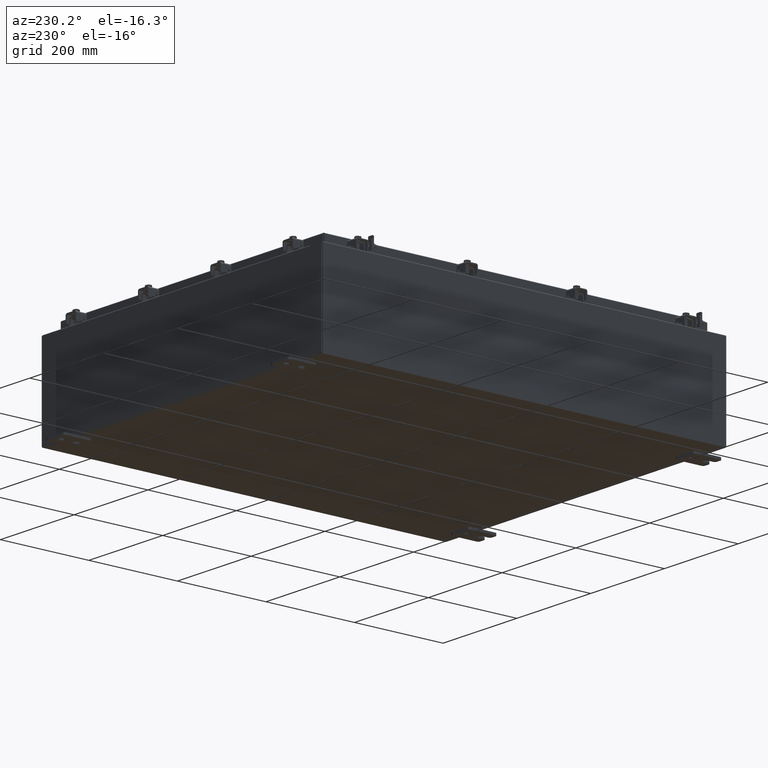
[diagram: clean part render]
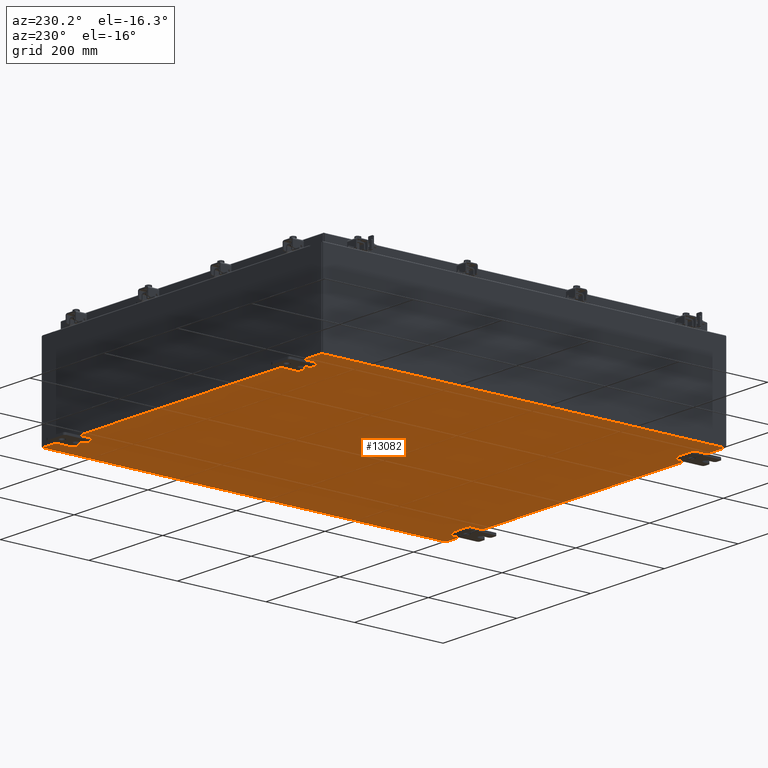
[diagram: same view with one face highlighted and labeled with its STEP entity id]
A machine part, auxiliary view. The second image highlights one B-rep face of the part: STEP entity #13082.
In plain terms, the highlighted planar face has unit normal (0, 0, -1).
Its self-contained STEP definition (entity closure, byte-faithful):
#157 = DIRECTION ( 'NONE',  ( 1.000000000000000000, 0.0000000000000000000, 0.0000000000000000000 ) ) ;
#253 = VECTOR ( 'NONE', #22814, 39.37007874015748100 ) ;
#2124 = AXIS2_PLACEMENT_3D ( 'NONE', #11583, #13489, #2151 ) ;
#2151 = DIRECTION ( 'NONE',  ( -1.000000000000000000, 0.0000000000000000000, -0.0000000000000000000 ) ) ;
#2978 = EDGE_CURVE ( 'NONE', #21582, #10442, #7890, .T. ) ;
#3082 = EDGE_CURVE ( 'NONE', #20355, #10442, #13789, .T. ) ;
#4549 = CARTESIAN_POINT ( 'NONE',  ( 14.91229999999999800, 17.92530000000000000, -0.07470000000000251400 ) ) ;
#4812 = EDGE_CURVE ( 'NONE', #21582, #7539, #11938, .T. ) ;
#5281 = LINE ( 'NONE', #17211, #253 ) ;
#5986 = ORIENTED_EDGE ( 'NONE', *, *, #3082, .T. ) ;
#6909 = VECTOR ( 'NONE', #9643, 39.37007874015748100 ) ;
#7539 = VERTEX_POINT ( 'NONE', #14081 ) ;
#7890 = LINE ( 'NONE', #13219, #14999 ) ;
#8891 = ORIENTED_EDGE ( 'NONE', *, *, #13056, .F. ) ;
#9478 = CARTESIAN_POINT ( 'NONE',  ( 14.91229999999999800, 17.92530000000000000, -0.07470000000000251400 ) ) ;
#9643 = DIRECTION ( 'NONE',  ( -0.0000000000000000000, 1.000000000000000000, -0.0000000000000000000 ) ) ;
#10233 = DIRECTION ( 'NONE',  ( -0.0000000000000000000, -1.000000000000000000, 8.208677865577646300E-017 ) ) ;
#10442 = VERTEX_POINT ( 'NONE', #18337 ) ;
#11583 = CARTESIAN_POINT ( 'NONE',  ( 0.0000000000000000000, 0.0000000000000000000, -0.07469999999999998900 ) ) ;
#11938 = LINE ( 'NONE', #19158, #6909 ) ;
#13056 = EDGE_CURVE ( 'NONE', #20355, #7539, #5281, .T. ) ;
#13082 = ADVANCED_FACE ( 'NONE', ( #19209 ), #22892, .T. ) ;
#13219 = CARTESIAN_POINT ( 'NONE',  ( -15.00000000000000400, -17.92530000000000000, -0.07469999999999998900 ) ) ;
#13489 = DIRECTION ( 'NONE',  ( 0.0000000000000000000, 0.0000000000000000000, -1.000000000000000000 ) ) ;
#13789 = LINE ( 'NONE', #4549, #18236 ) ;
#14081 = CARTESIAN_POINT ( 'NONE',  ( -14.91230000000000200, 17.92530000000000000, -0.07469999999999998900 ) ) ;
#14999 = VECTOR ( 'NONE', #157, 39.37007874015748100 ) ;
#15953 = ORIENTED_EDGE ( 'NONE', *, *, #4812, .T. ) ;
#16364 = ORIENTED_EDGE ( 'NONE', *, *, #2978, .F. ) ;
#17211 = CARTESIAN_POINT ( 'NONE',  ( -15.00000000000000400, 17.92530000000000000, -0.07469999999999998900 ) ) ;
#18236 = VECTOR ( 'NONE', #10233, 39.37007874015748100 ) ;
#18337 = CARTESIAN_POINT ( 'NONE',  ( 14.91229999999999800, -17.92530000000000000, -0.07469999999999998900 ) ) ;
#19019 = CARTESIAN_POINT ( 'NONE',  ( -14.91230000000000200, -17.92530000000000000, -0.07469999999999996100 ) ) ;
#19158 = CARTESIAN_POINT ( 'NONE',  ( -14.91230000000000200, -17.92530000000000000, -0.07469999999999996100 ) ) ;
#19209 = FACE_OUTER_BOUND ( 'NONE', #21579, .T. ) ;
#20355 = VERTEX_POINT ( 'NONE', #9478 ) ;
#21579 = EDGE_LOOP ( 'NONE', ( #16364, #15953, #8891, #5986 ) ) ;
#21582 = VERTEX_POINT ( 'NONE', #19019 ) ;
#22814 = DIRECTION ( 'NONE',  ( -1.000000000000000000, -0.0000000000000000000, -0.0000000000000000000 ) ) ;
#22892 = PLANE ( 'NONE',  #2124 ) ;